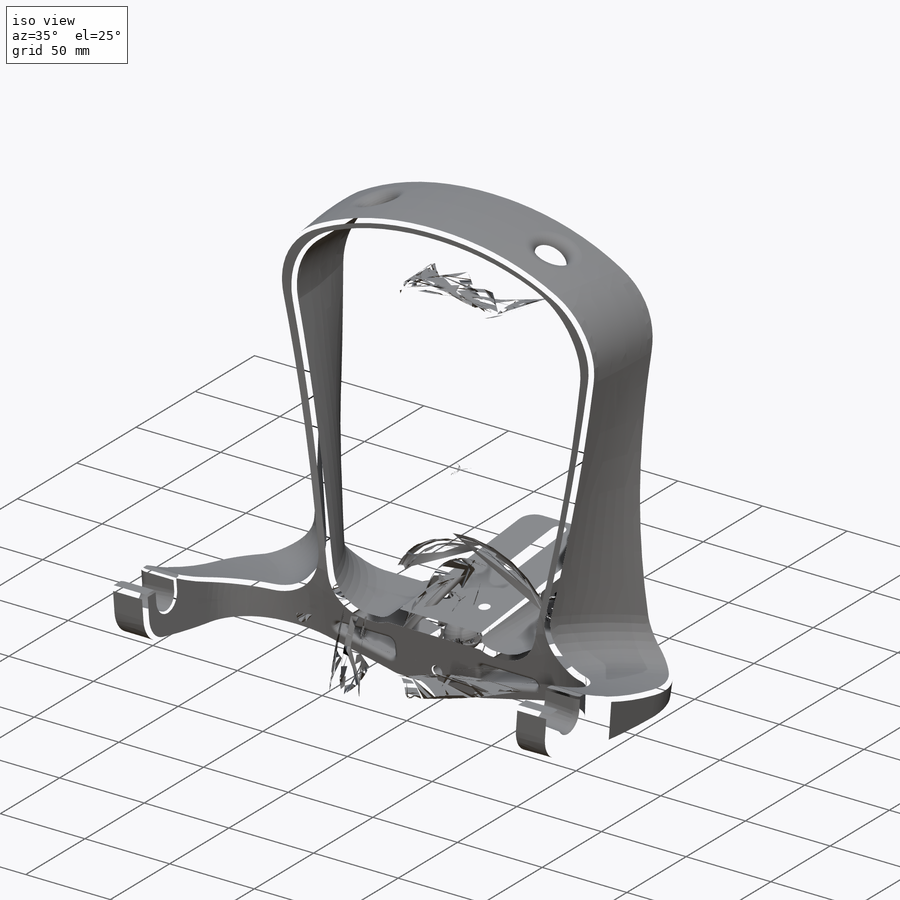
[diagram: iso view]
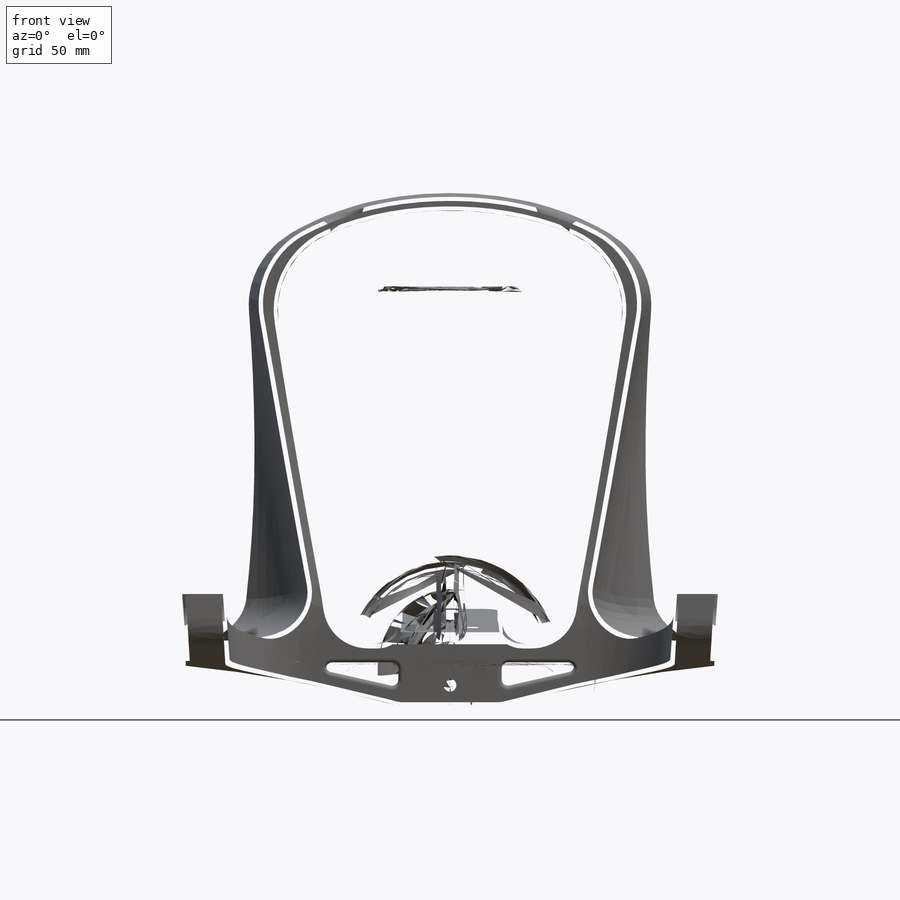
[diagram: front view]
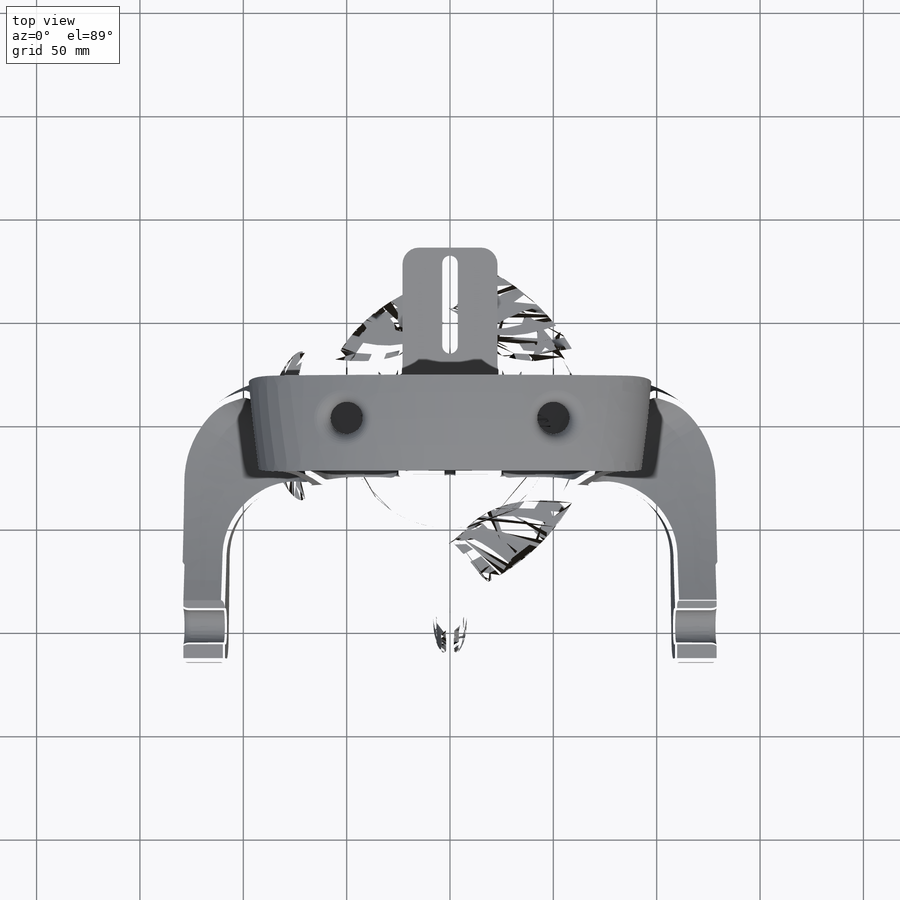
[diagram: top view]
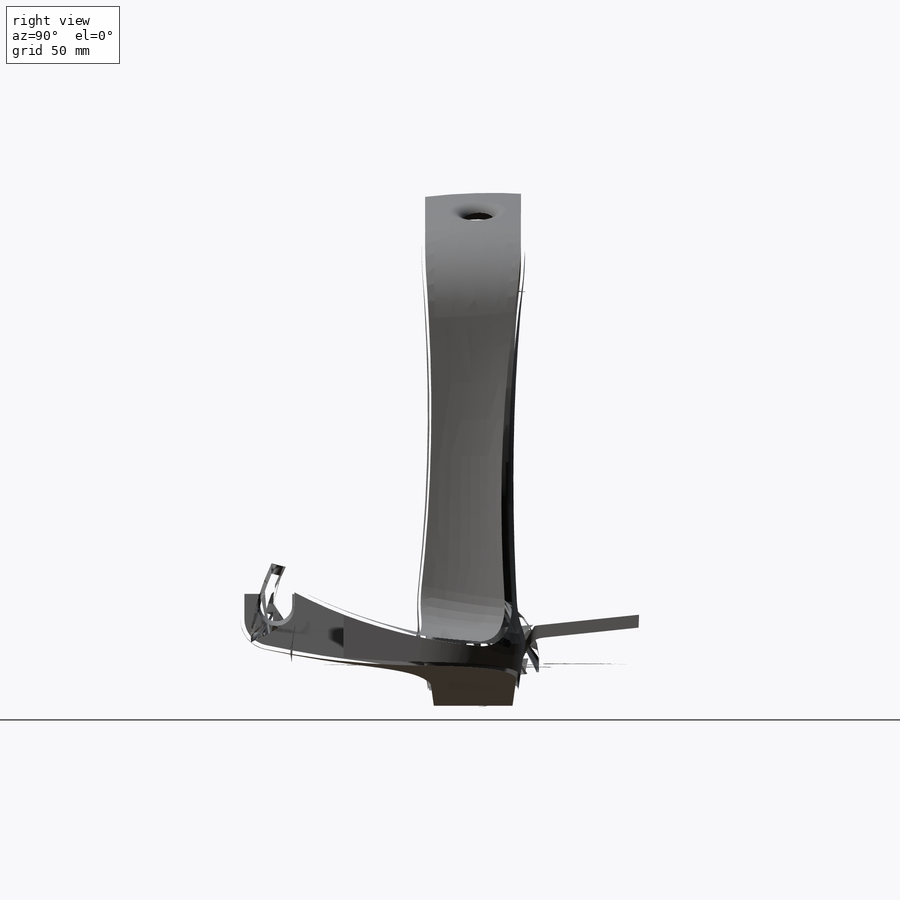
[diagram: right view]
SOLIDWORKS PART (.sldprt)
format: sldprt  version: not decoded by parser v0  size: 5,560,832 bytes
history: native  units: mm
features: sketch x48, mirror x37, cut_extrude x19, plane x18, fillet x6, extrude x5, material x1 (+13 scaffold rows collapsed)
feature tree (147):
  scaffold x13  (default folders/planes/origin — collapsed)
  material  "Epoxid, Ungefüllt"
  plane  "Ebene vorne"
  plane  "Ebene oben"
  plane  "Ebene rechts"
  sketch  "Skizze2"  dims[D1=50.0mm D2=27.3mm D3=270.0mm D4=135.0mm]
  extrude  "Aufsatz-Linear austragen1"  Depth=20mm
  sketch  "Skizze3"  dims[D1=35.0mm D2=35.0mm]
  extrude  "Aufsatz-Linear austragen2"  Depth=10mm
  plane  "Ebene1"  Offset=0mm
  plane  "Ebene3"  Offset=0mm
  sketch  "Skizze4"  dims[c1.D3=350.0mm c1.D6=150.625mm c2.D3=600.0mm c2.D4=600.0mm c2.D1=50.0mm c2.D2=25.0mm c3.D3=10.0mm c3.D4=10.0mm c3.D5=20.0mm]
  cut_extrude  "Schnitt-Linear austragen1"  [1 undecoded]
  sketch  "Skizze6"  dims[c1.D1=~40.189618mm c2.D1=8.0deg c2.D2=10.0mm c3.D2=8.0deg]
  cut_extrude  "Schnitt-Linear austragen3"  [1 undecoded]
  sketch  "Skizze8"  dims[D1=5.2mm D2=10.0mm]
  cut_extrude  "Schnitt-Linear austragen6"  Depth=60mm
  sketch  "Skizze21"  dims[c1.D2=7.0mm c1.D1=9.0mm c1.D3=~605.41691mm c1.D4=~39.104628mm c2.D4=22.0deg c2.D5=~39.104628mm c3.D5=15.0deg c3.D4=~46.085753mm c4.D4=7.5deg c5.D4=7.0mm c5.D2=9.0mm c6.D4=35.0mm c6.D1=5.0mm c6.D3=8.0mm]
  cut_extrude  "Schnitt-Linear austragen10"  Depth=70mm
  mirror  "Spiegeln1"
  fillet  "Verrundung99"  Radius=3mm
  plane  "Ebene4"  Offset=70mm
  sketch  "Skizze11"  dims[D3=400.0mm D1=115.0mm D2=25.0mm D4=30.0mm]
  sketch  "Skizze13"  dims[c1.D1=~208.760889mm c1.D2=~109.222784mm c2.D1=600.0mm c2.D2=100.0mm c3.D1=~29.502595mm]
  sketch  "Skizze23"
  sketch  "3D-Skizze4"
  fillet  "3D-Skizze5"  [1 undecoded]
  sketch  "Skizze25"
  cut_extrude  "Schnitt-Linear austragen12"  Depth=70mm
  mirror  "Verrundung26"
  sketch  "Skizze26"  dims[c1.D1=15.5mm c1.D2=20.0mm c1.D3=8.0mm c1.D4=15.0mm c2.D3=8.0mm c2.D5=17.45mm]
  cut_extrude  "Schnitt-Linear austragen13"  Depth=50mm
  mirror  "Verrundung27"
  mirror  "Verrundung28"
  plane  "Ebene5"  Offset=70mm
  sketch  "Skizze27"  dims[D3=400.0mm D1=25.0mm D2=30.0mm D4=115.0mm]
  sketch  "Skizze28"  dims[D1=100.0mm D2=~337.143808mm]
  fillet  "3D-Skizze6"  [1 undecoded]
  fillet  "3D-Skizze7"  [1 undecoded]
  sketch  "Skizze29"
  sketch  "Skizze32"
  cut_extrude  "Schnitt-Linear austragen14"  Depth=70mm
  sketch  "Skizze33"  dims[D1=15.5mm D2=8.0mm D3=20.0mm D4=17.45mm]
  cut_extrude  "Schnitt-Linear austragen15"  Depth=50mm
  mirror  "Verrundung29"
  mirror  "Verrundung30"
  mirror  "Verrundung31"
  sketch  "Skizze34"  dims[c1.D3=40.0mm c1.D1=105.0mm c1.D2=105.0mm c1.D4=~11.088282mm c2.D4=90.0deg c3.D4=~11.088282mm c3.D2=105.0mm]
  sketch  "Skizze36"  dims[D1=90.0mm D2=90.0mm]
  plane  "Ebene7"  Offset=90mm
  fillet  "3D-Skizze11"  [1 undecoded]
  fillet  "3D-Skizze13"  [1 undecoded]
  sketch  "Skizze39"  dims[D1=27.0mm D2=27.0mm]
  plane  "Ebene8"  Offset=190mm
  sketch  "Skizze40"  dims[c1.D1=200.0mm c1.D2=100.0mm c1.D3=~48.994423mm c2.D3=90.0deg c3.D3=~48.994423mm]
  extrude  "Aufsatz-Linear austragen4"  Depth=10mm
  sketch  "Skizze41"  dims[D1=8.0mm]
  cut_extrude  "Schnitt-Linear austragen16"  Depth=80mm
  sketch  "Skizze42"
  cut_extrude  "Schnitt-Linear austragen17"  [1 undecoded]
  plane  "Ebene13"  Offset=2mm
  sketch  "Skizze49"
  cut_extrude  "Schnitt-Linear austragen19"  Depth=5mm
  sketch  "Skizze64"  dims[D1=0.0mm]
  sketch  "Skizze63"  dims[D2=5.0mm D3=5.0mm D1=8.0mm]
  plane  "Ebene21"
  plane  "Ebene22"
  sketch  "Skizze77"  dims[D1=650.0mm]
  sketch  "Skizze75"  dims[D1=500.0mm]
  sketch  "Skizze71"  dims[c1.D2=2.0mm c1.D3=5.0mm c2.D2=2.0mm c2.D1=8.0mm]
  sketch  "Skizze72"  dims[D1=0.0mm]
  plane  "Ebene19"
  sketch  "Skizze73"  dims[D1=500.0mm]
  plane  "Ebene20"
  sketch  "Skizze74"  dims[D1=650.0mm]
  sketch  "Schnitt-Ausformung4"
  sketch  "Skizze34<11>"
  sketch  "Skizze39<8>"
  sketch  "Skizze36<13>"
  sketch  "3D-Skizze11<6>"
  sketch  "3D-Skizze13<5>"
  mirror  "Verrundung174"
  mirror  "Verrundung176"
  mirror  "Verrundung177"
  mirror  "Verrundung180"
  mirror  "Verrundung181"
  mirror  "Verrundung182"
  plane  "Ebene23"  Offset=150mm
  mirror  "Verrundung188"
  mirror  "Verrundung190"
  sketch  "Skizze82"  dims[c1.D1=5.0mm c1.D2=50.0mm c2.D2=6.0deg c2.D3=65.0mm c2.D4=~10.457764mm c3.D4=82.0deg]
  extrude  "Aufsatz-Linear austragen5"  Depth=50mm
  mirror  "Verrundung193"
  mirror  "Verrundung194"
  mirror  "Verrundung195"
  mirror  "Verrundung196"
  sketch  "Skizze83"  dims[D1=6.5mm D2=40.0mm D3=10.0mm]
  cut_extrude  "Schnitt-Linear austragen25"  Depth=30mm
  mirror  "Verrundung197"
  sketch  "Skizze78"  dims[c1.D1=~31.073847mm c1.D2=10.0mm c2.D1=2.0mm c2.D2=~0.938551mm c3.D1=5.0mm c3.D2=0.1mm]
  cut_extrude  "Schnitt-Linear austragen22"  Depth=20mm
  sketch  "Skizze79"  dims[D1=20.0mm D2=10.0mm D3=35.0mm D4=5.0mm]
  cut_extrude  "Schnitt-Linear austragen23"  Depth=15mm
  sketch  "Skizze80"  dims[c1.D1=5.0mm c1.D2=5.0mm c1.D3=22.0mm c1.D4=11.0mm c2.D2=4.93mm]
  cut_extrude  "Schnitt-Linear austragen24"  Depth=50mm
  mirror  "Verrundung192"
  plane  "Ebene24"  Offset=200mm
  sketch  "Skizze85"  dims[D1=15.5mm D2=15.5mm]
  cut_extrude  "Schnitt-Linear austragen27"  Depth=50mm
  mirror  "Verrundung200"
  mirror  "Verrundung201"
  plane  "Ebene25"  Offset=208mm
  sketch  "Skizze86"  dims[D1=20.0mm D2=20.0mm]
  extrude  "Aufsatz-Linear austragen6"  [1 undecoded]
  mirror  "Verrundung202"
  mirror  "Verrundung203"
  sketch  "Skizze87"  dims[D1=50.0mm D2=65.0mm D3=70.0mm]
  cut_extrude  "Schnitt-Linear austragen28"  Depth=2mm
  sketch  "Skizze84"  dims[c1.D1=80.0mm c1.D2=50.0mm c1.D3=65.0mm c1.D4=80.0mm c2.D1=70.0mm]
  cut_extrude  "Schnitt-Linear austragen26"  Depth=2mm
  mirror  "Verrundung209"
  mirror  "Verrundung212"
  mirror  "Verrundung214"
  mirror  "Verrundung216"
  plane  "Ebene27"  Offset=25mm
  sketch  "Skizze90"  dims[c1.D1=8.1mm c1.D2=8.1mm c1.D3=5.0mm c1.D4=17.0mm c1.D5=17.0mm c2.D1=36.0mm]
  cut_extrude  "Schnitt-Linear austragen30"  Depth=7mm
  mirror  "Verrundung217"
  mirror  "Verrundung218"
  mirror  "Verrundung220"
  mirror  "Verrundung221"
  mirror  "Verrundung222"
  mirror  "Verrundung223"
  mirror  "Verrundung224"
  mirror  "Verrundung225"
decode coverage: 56 of 115 modeling features carry decoded parameters
note: ~ marks probable driven/reference dimensions
note: 9 parameter values undecoded
summary: no parameter record found for 9 features
note: suppression state not decoded; provenance and decode notes live in map.json
